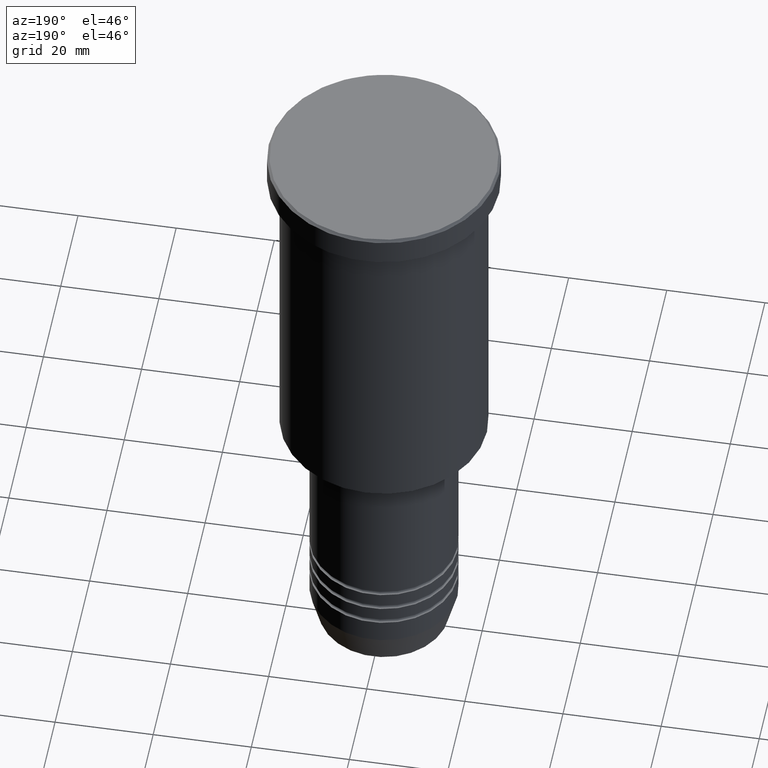
[diagram: clean part render]
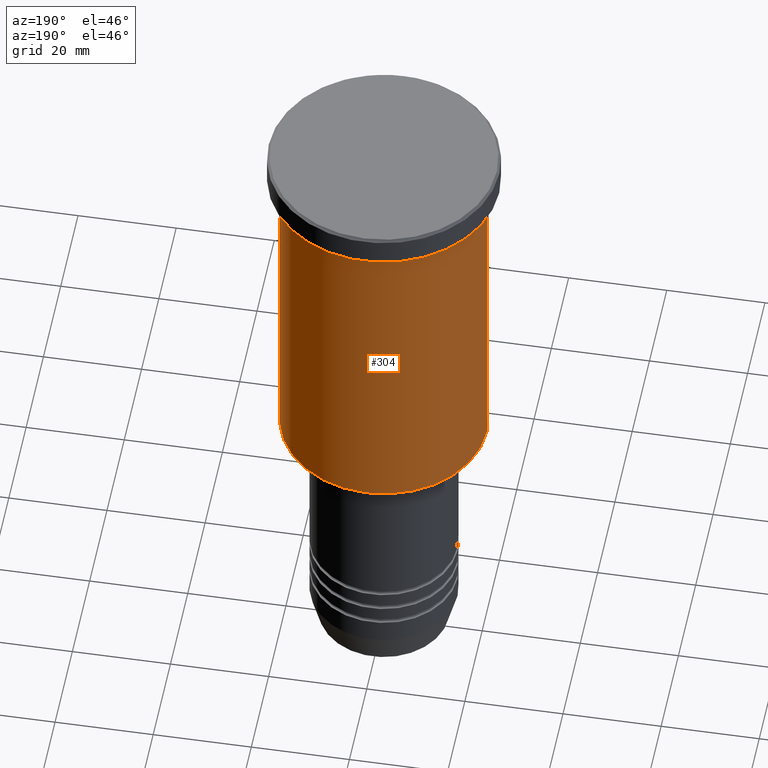
[diagram: same view with one face highlighted and labeled with its STEP entity id]
A machine part, auxiliary view. The second image highlights one B-rep face of the part: STEP entity #304.
In plain terms, the highlighted cylindrical surface (partial cylindrical patch) has radius 21 mm, axis along (-0, -0, 1).
Its self-contained STEP definition (entity closure, byte-faithful):
#18 = VECTOR ( 'NONE', #346, 1000.000000000000000 ) ;
#98 = CARTESIAN_POINT ( 'NONE',  ( 21.00000000000000000, 0.000000000000000000, -75.50000000000001421 ) ) ;
#102 = EDGE_CURVE ( 'NONE', #394, #706, #170, .T. ) ;
#159 = DIRECTION ( 'NONE',  ( -0.000000000000000000, -0.000000000000000000, 1.000000000000000000 ) ) ;
#170 = CIRCLE ( 'NONE', #567, 21.00000000000000000 ) ;
#179 = ORIENTED_EDGE ( 'NONE', *, *, #1177, .T. ) ;
#215 = CARTESIAN_POINT ( 'NONE',  ( 0.000000000000000000, 0.000000000000000000, -6.999999999999993783 ) ) ;
#225 = DIRECTION ( 'NONE',  ( 1.000000000000000000, 0.000000000000000000, 0.000000000000000000 ) ) ;
#246 = LINE ( 'NONE', #338, #1182 ) ;
#255 = FACE_OUTER_BOUND ( 'NONE', #831, .T. ) ;
#259 = CARTESIAN_POINT ( 'NONE',  ( 21.00000000000000000, 0.000000000000000000, -6.999999999999993783 ) ) ;
#296 = ORIENTED_EDGE ( 'NONE', *, *, #1019, .F. ) ;
#304 = ADVANCED_FACE ( 'NONE', ( #255 ), #773, .T. ) ;
#334 = ORIENTED_EDGE ( 'NONE', *, *, #719, .F. ) ;
#338 = CARTESIAN_POINT ( 'NONE',  ( -21.00000000000000000, 2.571758278209441661E-15, 0.000000000000000000 ) ) ;
#346 = DIRECTION ( 'NONE',  ( -0.000000000000000000, -0.000000000000000000, 1.000000000000000000 ) ) ;
#394 = VERTEX_POINT ( 'NONE', #98 ) ;
#402 = VERTEX_POINT ( 'NONE', #739 ) ;
#430 = CARTESIAN_POINT ( 'NONE',  ( 21.00000000000000000, 0.000000000000000000, 0.000000000000000000 ) ) ;
#444 = CARTESIAN_POINT ( 'NONE',  ( 0.000000000000000000, 0.000000000000000000, -75.50000000000001421 ) ) ;
#509 = CARTESIAN_POINT ( 'NONE',  ( 0.000000000000000000, 0.000000000000000000, 0.000000000000000000 ) ) ;
#567 = AXIS2_PLACEMENT_3D ( 'NONE', #444, #740, #1080 ) ;
#572 = CIRCLE ( 'NONE', #784, 21.00000000000000000 ) ;
#574 = DIRECTION ( 'NONE',  ( -0.000000000000000000, -0.000000000000000000, 1.000000000000000000 ) ) ;
#641 = CARTESIAN_POINT ( 'NONE',  ( -21.00000000000000000, 2.571758278209441661E-15, -75.50000000000001421 ) ) ;
#680 = DIRECTION ( 'NONE',  ( 1.000000000000000000, 0.000000000000000000, 0.000000000000000000 ) ) ;
#706 = VERTEX_POINT ( 'NONE', #641 ) ;
#719 = EDGE_CURVE ( 'NONE', #394, #726, #916, .T. ) ;
#726 = VERTEX_POINT ( 'NONE', #259 ) ;
#739 = CARTESIAN_POINT ( 'NONE',  ( -21.00000000000000000, 2.571758278209441661E-15, -6.999999999999993783 ) ) ;
#740 = DIRECTION ( 'NONE',  ( -0.000000000000000000, -0.000000000000000000, 1.000000000000000000 ) ) ;
#773 = CYLINDRICAL_SURFACE ( 'NONE', #1084, 21.00000000000000000 ) ;
#784 = AXIS2_PLACEMENT_3D ( 'NONE', #215, #574, #225 ) ;
#831 = EDGE_LOOP ( 'NONE', ( #926, #179, #296, #334 ) ) ;
#916 = LINE ( 'NONE', #430, #18 ) ;
#926 = ORIENTED_EDGE ( 'NONE', *, *, #102, .T. ) ;
#1019 = EDGE_CURVE ( 'NONE', #726, #402, #572, .T. ) ;
#1080 = DIRECTION ( 'NONE',  ( -1.000000000000000000, 0.000000000000000000, 0.000000000000000000 ) ) ;
#1084 = AXIS2_PLACEMENT_3D ( 'NONE', #509, #1136, #680 ) ;
#1136 = DIRECTION ( 'NONE',  ( -0.000000000000000000, -0.000000000000000000, 1.000000000000000000 ) ) ;
#1177 = EDGE_CURVE ( 'NONE', #706, #402, #246, .T. ) ;
#1182 = VECTOR ( 'NONE', #159, 1000.000000000000000 ) ;